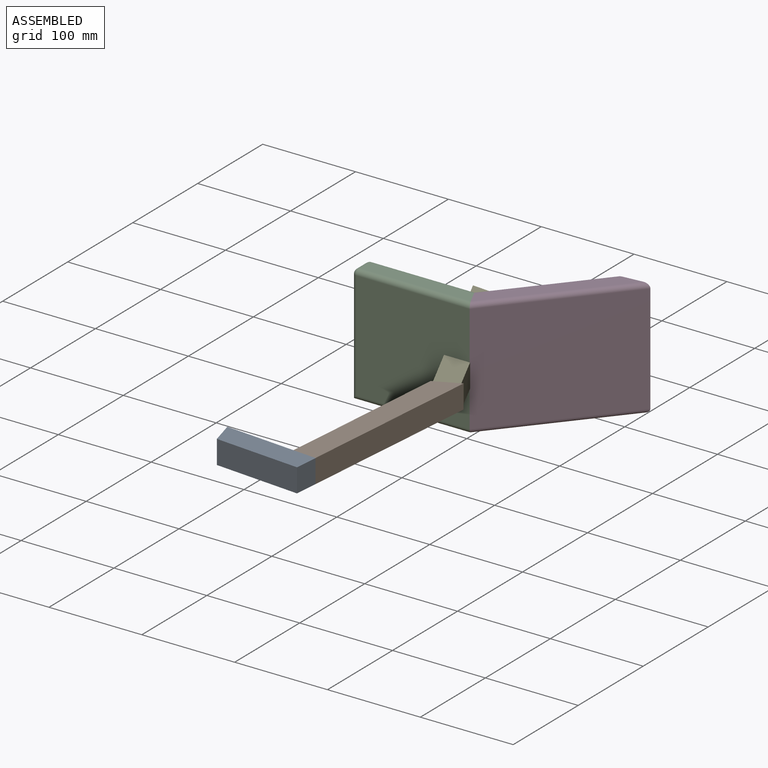
[diagram: assembled view]
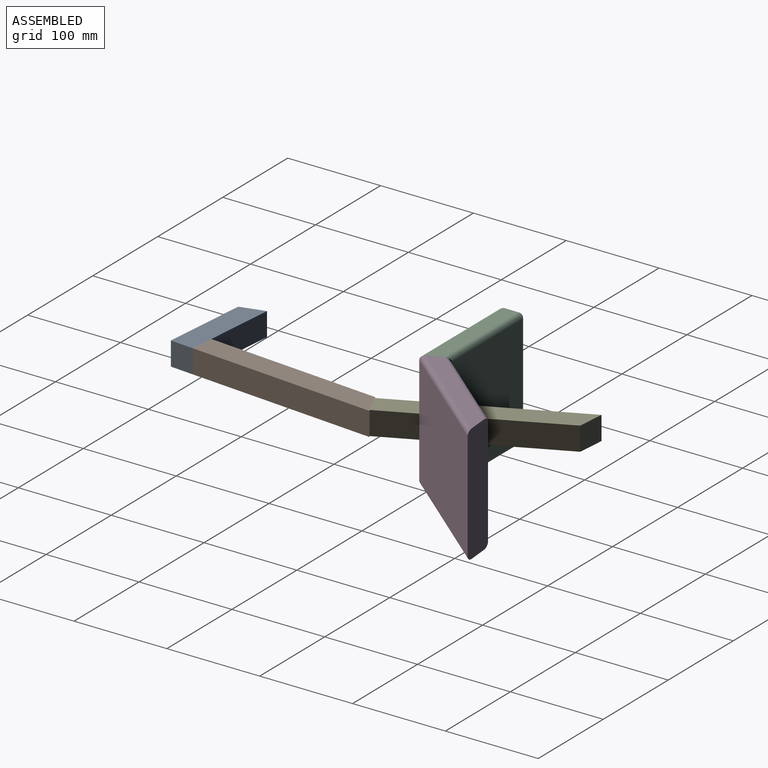
[diagram: assembled view, second angle]
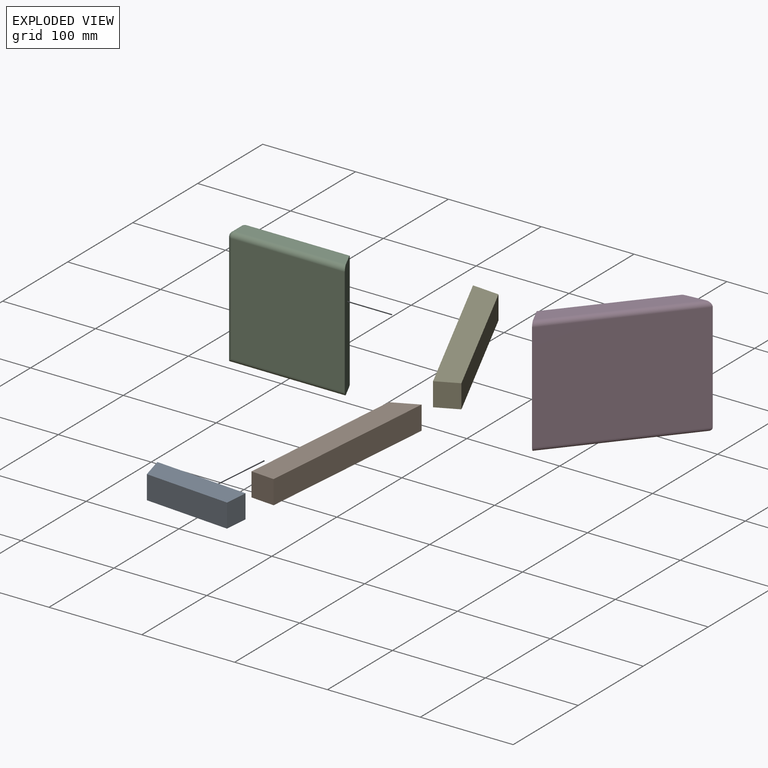
[diagram: exploded view]
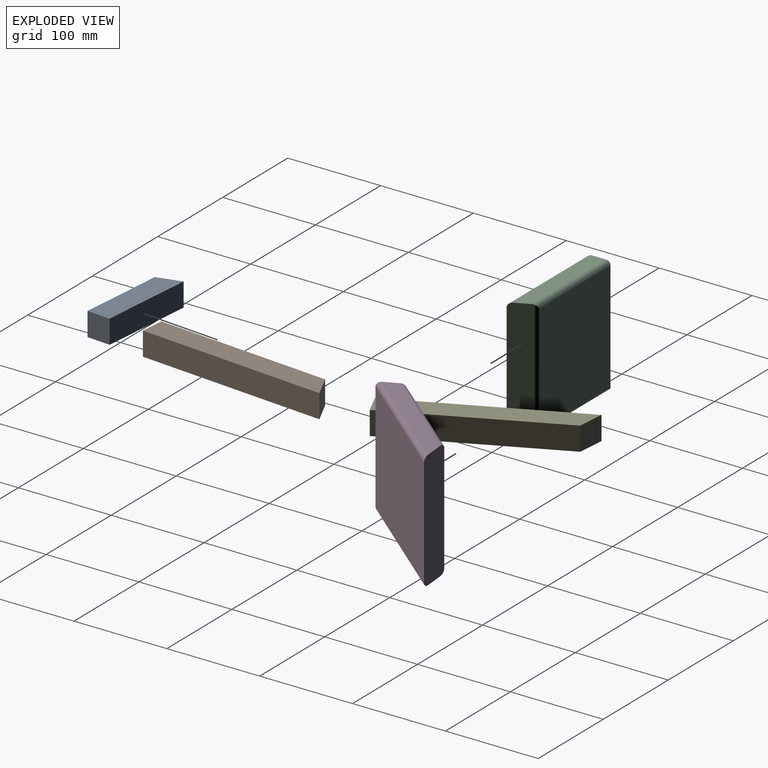
[diagram: exploded view, second angle]
ASSEMBLY  parts=5 mates=4
PART A: 6 faces, bbox 101.6x25.4x25.4 mm
  f0: plane 101.6x25.4mm, normal (0,0,-1), area 2580.6mm2, adj f1,f3,f4,f5
  f1: plane 25.4x25.4mm, normal (1,0,0), area 645.2mm2, adj f0,f2,f3,f4
  f2: plane 92.36x25.4mm, normal (0,0,1), area 2345.8mm2, adj f1,f3,f4,f5
  f3: plane 101.6x25.4mm, normal (0,-1,0), area 2463.2mm2, adj f0,f1,f2,f5
  f4: plane 101.6x25.4mm, normal (0,1,0), area 2463.2mm2, adj f0,f1,f2,f5
  f5: plane 25.4x25.4mm, normal (-0.94,0,0.34), area 686.6mm2, adj f0,f2,f3,f4
PART B: 6 faces, bbox 203.2x25.4x25.4 mm
  f0: plane 188.54x25.4mm, normal (0,0,-1), area 4788.8mm2, adj f1,f3,f4,f5
  f1: plane 25.4x25.4mm, normal (-1,0,0), area 645.2mm2, adj f0,f2,f3,f4
  f2: plane 203.2x25.4mm, normal (0,0,1), area 5161.3mm2, adj f1,f3,f4,f5
  f3: plane 203.2x25.4mm, normal (0,1,0), area 4975mm2, adj f0,f1,f2,f5
  f4: plane 203.2x25.4mm, normal (0,-1,0), area 4975mm2, adj f0,f1,f2,f5
  f5: plane 25.4x25.4mm, normal (0.87,0,-0.5), area 745mm2, adj f0,f2,f3,f4
PART C: 16 faces, bbox 127x25.4x127 mm
  f0: plane 119.55x15.24mm, normal (0,0,1), area 1767.8mm2, adj f5,f7,f10,f13
  f1: plane 121.92x15.24mm, normal (-1,0,0), area 1858.1mm2, adj f2,f8,f10,f12
  f2: plane 124.63x15.24mm, normal (0,0,-1), area 1845.2mm2, adj f1,f5,f6,f14
  f3: plane 121.92x116.84mm, normal (0,-1,0), area 14245.1mm2, adj f5,f6,f7,f8
  f4: plane 116.84x106.84mm, normal (0,1,0), area 12483.1mm2, adj f12,f13,f14,f15
  f5: plane 127x22.47mm, normal (0.91,0.42,0), area 3135.3mm2, adj f0,f2,f3,f6,f7,f13,f14,f15
  f6: cylinder r=5.08mm len=127mm, axis (-1,0,0), area 991.8mm2, adj f2,f3,f5,f8
  f7: cylinder r=5.08mm len=121.92mm, axis (1,0,0), area 966mm2, adj f0,f3,f5,f9
  f8: cylinder r=5.08mm len=121.92mm, axis (0,0,1), area 958.1mm2, adj f1,f3,f6,f9
  f9: sphere r=5.08mm, area 40.5mm2, adj f7,f8,f10
  f10: cylinder r=5.08mm len=15.24mm, axis (0,1,0), area 121.6mm2, adj f0,f1,f9,f11
  f11: sphere r=5.08mm, area 40.5mm2, adj f10,f12,f13
  f12: cylinder r=5.08mm len=121.92mm, axis (0,0,-1), area 958.1mm2, adj f1,f4,f11,f14
  f13: cylinder r=5.08mm len=112.44mm, axis (-1,0,0), area 878.7mm2, adj f0,f4,f5,f11,f15
  f14: cylinder r=5.08mm len=117.52mm, axis (1,0,0), area 904.5mm2, adj f2,f4,f5,f12,f15
  f15: cylinder r=5.08mm len=126.05mm, axis (0,0,-1), area 703.2mm2, adj f4,f5,f13,f14
PART D: 11 faces, bbox 165.1x25.4x127 mm
  f0: plane 157.65x15.24mm, normal (0,0,-1), area 2232.3mm2, adj f4,f5,f6,f9
  f1: plane 157.65x15.24mm, normal (0,0,1), area 2232.3mm2, adj f4,f5,f8,f10
  f2: plane 165.1x116.84mm, normal (0,-1,0), area 19290.3mm2, adj f4,f5,f9,f10
  f3: plane 124.62x116.84mm, normal (0,1,0), area 14560.5mm2, adj f5,f6,f7,f8
  f4: plane 127x22.47mm, normal (0.91,0.42,0), area 3135.3mm2, adj f0,f1,f2,f6,f7,f8,f9,f10
  f5: plane 127x25.4mm, normal (-0.71,0.71,0), area 4530.6mm2, adj f0,f1,f2,f3,f6,f8,f9,f10
  f6: cylinder r=5.08mm len=135.3mm, axis (1,0,0), area 1035.3mm2, adj f0,f3,f4,f5,f7
  f7: cylinder r=5.08mm len=126.05mm, axis (0,0,1), area 703.2mm2, adj f3,f4,f6,f8
  f8: cylinder r=5.08mm len=135.3mm, axis (-1,0,0), area 1035.3mm2, adj f1,f3,f4,f5,f7
  f9: cylinder r=5.08mm len=165.1mm, axis (-1,0,0), area 1295.8mm2, adj f0,f2,f4,f5
  f10: cylinder r=5.08mm len=165.1mm, axis (1,0,0), area 1295.8mm2, adj f1,f2,f4,f5
PART E: same geometry as B
PLACE A rot(axis=(1,-0.04,-0.04),90.1deg) t=(-47.81,-166.83,-74.76)mm
PLACE B rot(axis=(0.61,0.56,0.56),117.2deg) t=(31.82,16.02,-100.16)mm
PLACE C t=(-121.1,221.29,-144.82)mm
PLACE D rot(axis=(0.42,-0.91,0),180deg) t=(186.48,450.61,-17.82)mm
PLACE E rot(axis=(-0.41,-0.64,0.64),135.3deg) t=(-40.56,195.37,-74.76)mm
MATE parallel C.f5 <-> D.f4  axis (0.91,0.42,0) through (0.64,207.16,-81.32)mm
MATE parallel B.f5 <-> E.f1  axis (-0.42,0.91,0) through (13.45,150.62,-87.46)mm
MATE parallel A.f0 <-> B.f1  axis (0.09,1,0) through (9.03,-45.61,-87.46)mm
MATE parallel C.f5 <-> D.f4  axis (0.91,0.42,0) through (0.64,207.16,-81.32)mm
